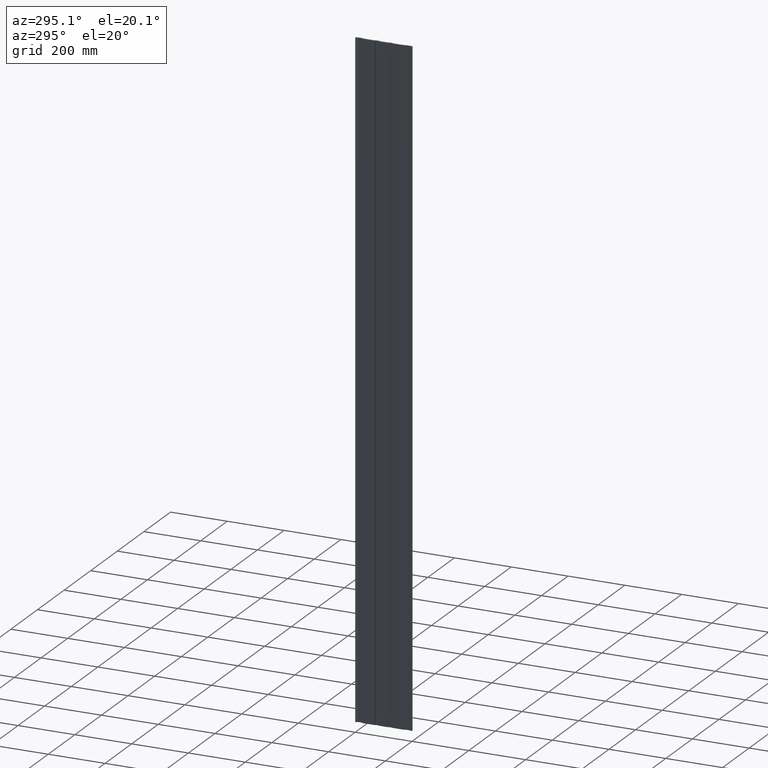
[diagram: clean part render]
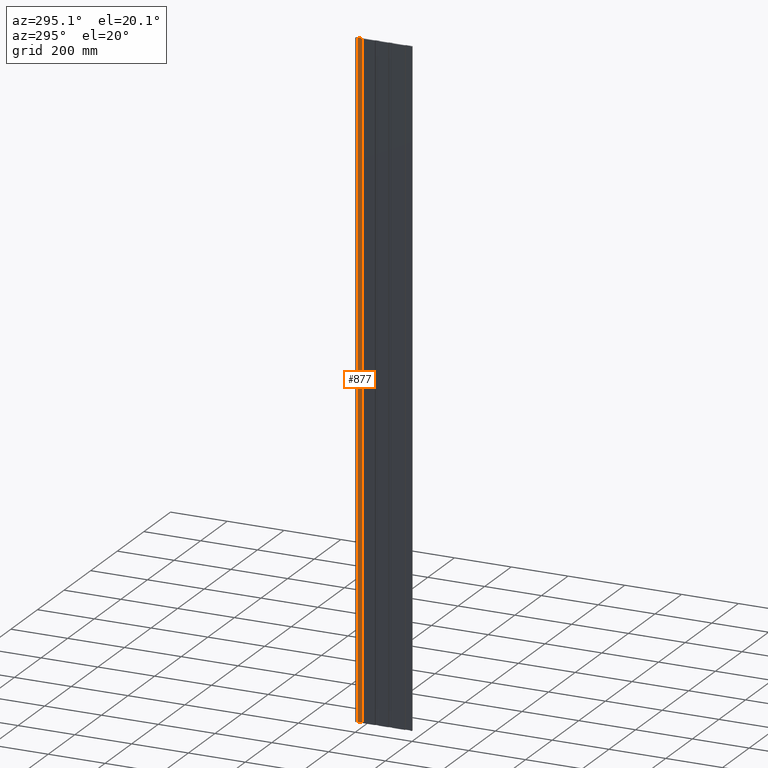
[diagram: same view with one face highlighted and labeled with its STEP entity id]
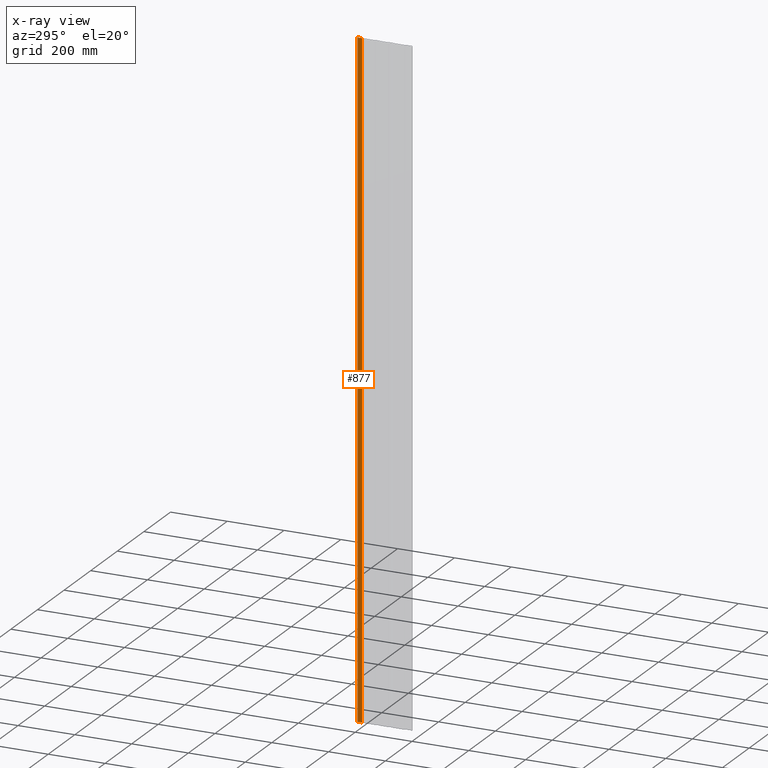
[diagram: x-ray of the same camera — body ghosted, the highlighted face saturated]
A machine part, auxiliary view. The second image highlights one B-rep face of the part: STEP entity #877.
The next image is the same camera in x-ray: the body ghosted, the highlighted face saturated — about 0% of this face is hidden behind the body in this view.
In plain terms, the highlighted planar face has unit normal (1, -0, 0).
Its self-contained STEP definition (entity closure, byte-faithful):
#10 = CARTESIAN_POINT ( 'NONE',  ( 3.000000000000002700, 193.0000000000000000, 1162.000000000000000 ) ) ;
#13 = CARTESIAN_POINT ( 'NONE',  ( 3.000000000000002700, 193.0000000000000000, -1162.000000000000000 ) ) ;
#115 = EDGE_CURVE ( 'NONE', #2494, #1126, #2308, .T. ) ;
#194 = VECTOR ( 'NONE', #2438, 1000.000000000000000 ) ;
#301 = VECTOR ( 'NONE', #453, 1000.000000000000000 ) ;
#392 = DIRECTION ( 'NONE',  ( 1.000000000000000000, -5.481106564558863100E-017, 0.0000000000000000000 ) ) ;
#424 = VERTEX_POINT ( 'NONE', #2057 ) ;
#453 = DIRECTION ( 'NONE',  ( -0.0000000000000000000, -0.0000000000000000000, -1.000000000000000000 ) ) ;
#549 = ORIENTED_EDGE ( 'NONE', *, *, #1500, .T. ) ;
#567 = LINE ( 'NONE', #13, #2157 ) ;
#694 = ORIENTED_EDGE ( 'NONE', *, *, #2184, .F. ) ;
#745 = CARTESIAN_POINT ( 'NONE',  ( 3.000000000000006200, 193.0000000000000000, 1162.000000000000000 ) ) ;
#877 = ADVANCED_FACE ( 'NONE', ( #1621 ), #1511, .F. ) ;
#1072 = CARTESIAN_POINT ( 'NONE',  ( 3.000000000000006200, 193.0000000000000000, 1162.000000000000000 ) ) ;
#1126 = VERTEX_POINT ( 'NONE', #1426 ) ;
#1134 = ORIENTED_EDGE ( 'NONE', *, *, #115, .T. ) ;
#1250 = DIRECTION ( 'NONE',  ( -0.0000000000000000000, -0.0000000000000000000, -1.000000000000000000 ) ) ;
#1362 = CARTESIAN_POINT ( 'NONE',  ( 3.000000000000001800, 177.1754264805429700, 1162.000000000000000 ) ) ;
#1426 = CARTESIAN_POINT ( 'NONE',  ( 3.000000000000006200, 193.0000000000000000, -1162.000000000000000 ) ) ;
#1500 = EDGE_CURVE ( 'NONE', #1126, #424, #567, .T. ) ;
#1511 = PLANE ( 'NONE',  #1899 ) ;
#1621 = FACE_OUTER_BOUND ( 'NONE', #2110, .T. ) ;
#1702 = LINE ( 'NONE', #2230, #194 ) ;
#1722 = DIRECTION ( 'NONE',  ( 5.481106564558863100E-017, 1.000000000000000000, 0.0000000000000000000 ) ) ;
#1724 = DIRECTION ( 'NONE',  ( -5.481106564558863700E-017, -1.000000000000000000, 0.0000000000000000000 ) ) ;
#1742 = VECTOR ( 'NONE', #1250, 1000.000000000000000 ) ;
#1899 = AXIS2_PLACEMENT_3D ( 'NONE', #10, #392, #1722 ) ;
#1969 = ORIENTED_EDGE ( 'NONE', *, *, #2198, .F. ) ;
#2043 = CARTESIAN_POINT ( 'NONE',  ( 3.000000000000001800, 177.1754264805429700, 1162.000000000000000 ) ) ;
#2057 = CARTESIAN_POINT ( 'NONE',  ( 3.000000000000001800, 177.1754264805429700, -1162.000000000000000 ) ) ;
#2110 = EDGE_LOOP ( 'NONE', ( #549, #694, #1969, #1134 ) ) ;
#2157 = VECTOR ( 'NONE', #1724, 1000.000000000000000 ) ;
#2184 = EDGE_CURVE ( 'NONE', #2229, #424, #2453, .T. ) ;
#2198 = EDGE_CURVE ( 'NONE', #2494, #2229, #1702, .T. ) ;
#2229 = VERTEX_POINT ( 'NONE', #2043 ) ;
#2230 = CARTESIAN_POINT ( 'NONE',  ( 3.000000000000002700, 193.0000000000000000, 1162.000000000000000 ) ) ;
#2308 = LINE ( 'NONE', #745, #1742 ) ;
#2438 = DIRECTION ( 'NONE',  ( -5.481106564558863700E-017, -1.000000000000000000, 0.0000000000000000000 ) ) ;
#2453 = LINE ( 'NONE', #1362, #301 ) ;
#2494 = VERTEX_POINT ( 'NONE', #1072 ) ;